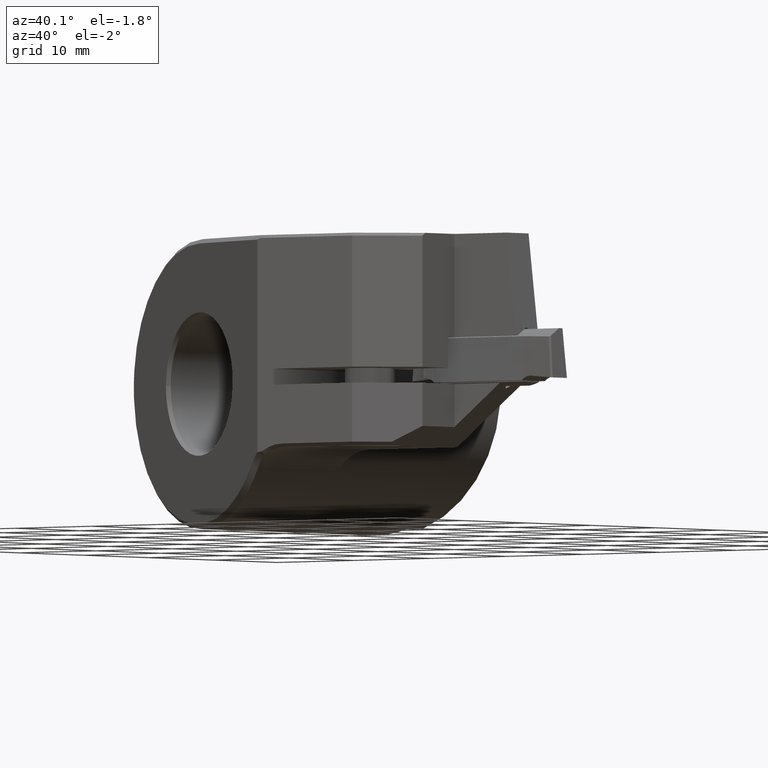
[diagram: clean part render]
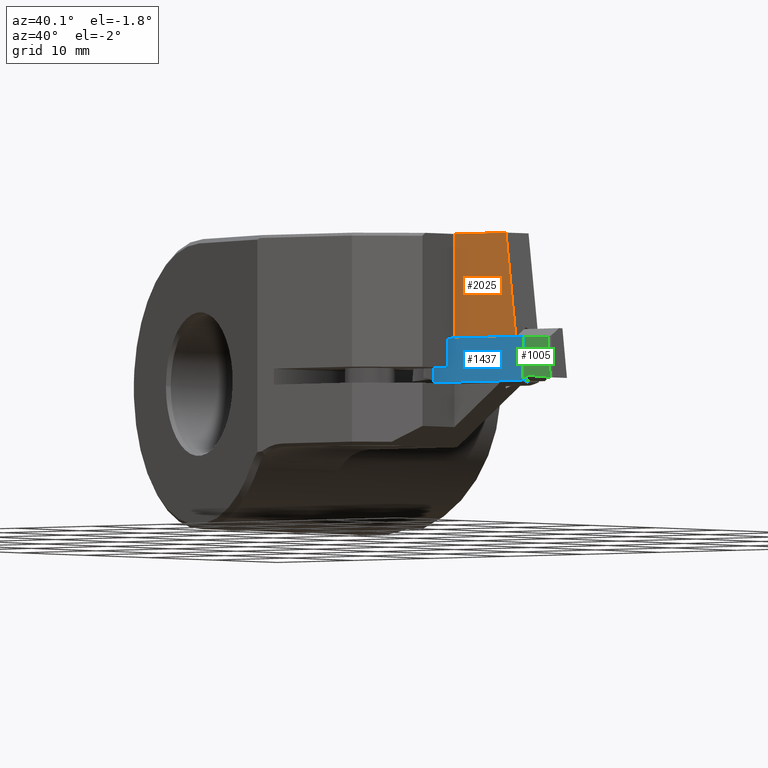
[diagram: same view with three faces highlighted in distinct colors, each labeled with its STEP entity id]
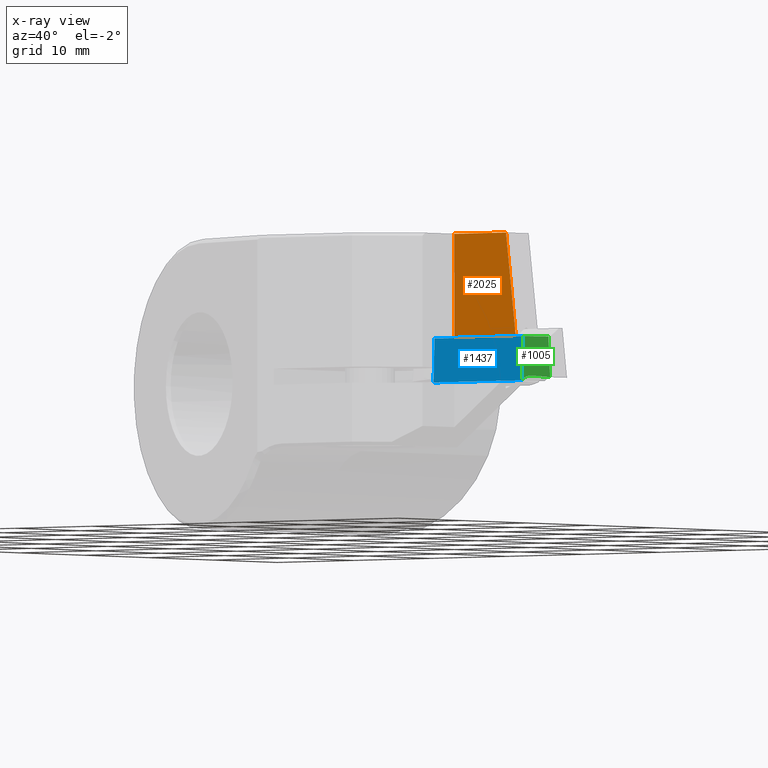
[diagram: x-ray of the same camera — body ghosted, the three highlighted faces saturated]
A machine part, auxiliary view with three faces highlighted in distinct colors.
The next image is the same camera in x-ray (body ghosted, the three faces saturated) — at least one of them is partly hidden behind the body in this view.
Their STEP definitions:

[orange] entity #2025 — the highlighted planar face has unit normal (-0, 1, 0).
#951=VERTEX_POINT('NONE',#2502);
#995=EDGE_CURVE('NONE',#1431,#1623,#2553,.F.);
#1001=EDGE_CURVE('NONE',#1235,#951,#2559,.F.);
#1235=VERTEX_POINT('NONE',#2814);
#1431=VERTEX_POINT('NONE',#3026);
#1623=VERTEX_POINT('NONE',#3240);
#1827=EDGE_CURVE('NONE',#1623,#1235,#3462,.F.);
#1869=EDGE_CURVE('NONE',#1431,#951,#3510,.T.);
#2025=ADVANCED_FACE('NONE',(#3686),#3687,.F.);
#2502=CARTESIAN_POINT('',(29.7,-25.25,14.5));
#2553=LINE('',#4540,#4541);
#2559=LINE('',#4560,#4561);
#2814=CARTESIAN_POINT('',(29.7,-25.25,4.20000000000001));
#3026=CARTESIAN_POINT('',(36.4353190227002,-25.25,14.5));
#3240=CARTESIAN_POINT('',(37.7,-25.25,4.20000000000001));
#3462=LINE('',#6223,#6224);
#3510=LINE('',#6346,#6347);
#3686=FACE_OUTER_BOUND('',#6649,.T.);
#3687=PLANE('',#6650);
#4540=CARTESIAN_POINT('',(38.1392358258305,-25.25,0.622711270859007));
#4541=VECTOR('',#7439,1.0);
#4560=CARTESIAN_POINT('',(29.7,-25.25,-14.5));
#4561=VECTOR('',#7443,1.0);
#6223=CARTESIAN_POINT('',(33.85,-25.25,4.20000000000001));
#6224=VECTOR('',#8376,1.0);
#6346=CARTESIAN_POINT('',(14.85,-25.25,14.5));
#6347=VECTOR('',#8440,1.0);
#6649=EDGE_LOOP('',(#8653,#8654,#8655,#8656));
#6650=AXIS2_PLACEMENT_3D('',#8657,#8658,#8659);
#7439=DIRECTION('',(-0.12186934340514,-5.09420749413919E-017,0.992546151641323));
#7443=DIRECTION('',(0.0,0.0,-1.0));
#8376=DIRECTION('',(1.0,4.18005656861881E-016,0.0));
#8440=DIRECTION('',(-1.0,-4.18005656861881E-016,0.0));
#8653=ORIENTED_EDGE('',*,*,#1827,.F.);
#8654=ORIENTED_EDGE('',*,*,#995,.F.);
#8655=ORIENTED_EDGE('',*,*,#1869,.T.);
#8656=ORIENTED_EDGE('',*,*,#1001,.F.);
#8657=CARTESIAN_POINT('',(29.7,-25.25,-14.5));
#8658=DIRECTION('',(-4.18005656861881E-016,1.0,0.0));
#8659=DIRECTION('',(-1.0,-4.18005656861881E-016,0.0));

[blue] entity #1437 — the highlighted planar face has unit normal (0, -0.9994, 0.0349).
#821=EDGE_CURVE('NONE',#961,#2285,#2360,.T.);
#869=VERTEX_POINT('NONE',#2412);
#961=VERTEX_POINT('NONE',#2514);
#1175=VERTEX_POINT('NONE',#2748);
#1339=EDGE_CURVE('NONE',#2193,#869,#2925,.T.);
#1437=ADVANCED_FACE('NONE',(#3032),#3033,.T.);
#1619=VERTEX_POINT('NONE',#3235);
#1825=EDGE_CURVE('NONE',#1619,#1175,#3460,.T.);
#1975=EDGE_CURVE('NONE',#1619,#961,#3629,.T.);
#1979=EDGE_CURVE('NONE',#2193,#1175,#3633,.T.);
#2193=VERTEX_POINT('NONE',#3872);
#2209=EDGE_CURVE('NONE',#869,#2285,#3888,.T.);
#2285=VERTEX_POINT('NONE',#3970);
#2360=(B_SPLINE_CURVE(3,(#4052,#4053,#4054,#4055),.UNSPECIFIED.,.F.,.F.)B_SPLINE_CURVE_WITH_KNOTS((4,4),(5.52004830039419,5.58494888979566),.UNSPECIFIED.)RATIONAL_B_SPLINE_CURVE((1.0,0.999649023591712,0.999649023591712,1.0))BOUNDED_CURVE()REPRESENTATION_ITEM('')GEOMETRIC_REPRESENTATION_ITEM()CURVE());
#2412=CARTESIAN_POINT('',(38.623441189102,-25.1483768536705,4.09960428409865));
#2514=CARTESIAN_POINT('',(38.5408903279005,-25.3022431864336,-0.306550992616997));
#2748=CARTESIAN_POINT('',(27.0095353452879,-25.2997781814902,-0.235962486714985));
#2925=LINE('',#5211,#5212);
#3032=FACE_OUTER_BOUND('',#5474,.T.);
#3033=PLANE('',#5475);
#3235=CARTESIAN_POINT('',(27.0883035359872,-25.3022431864336,-0.306550992616997));
#3460=(B_SPLINE_CURVE(3,(#6211,#6212,#6213,#6214),.UNSPECIFIED.,.F.,.F.)B_SPLINE_CURVE_WITH_KNOTS((4,4),(5.52004830039419,5.58494888979566),.UNSPECIFIED.)RATIONAL_B_SPLINE_CURVE((1.0,0.999649023591712,0.999649023591712,1.0))BOUNDED_CURVE()REPRESENTATION_ITEM('')GEOMETRIC_REPRESENTATION_ITEM()CURVE());
#3629=LINE('',#6538,#6539);
#3633=LINE('',#6544,#6545);
#3872=CARTESIAN_POINT('',(27.0057526747857,-25.1483768536705,4.09960428409865));
#3888=LINE('',#6965,#6966);
#3970=CARTESIAN_POINT('',(38.6196585185998,-25.2997781814902,-0.235962486714984));
#4052=CARTESIAN_POINT('',(38.5408903279005,-25.3022431864336,-0.306550992616997));
#4053=CARTESIAN_POINT('',(38.5663781089123,-25.3013919040506,-0.282173454682856));
#4054=CARTESIAN_POINT('',(38.5926433909731,-25.3005699472487,-0.258635691515943));
#4055=CARTESIAN_POINT('',(38.6196585185998,-25.2997781814902,-0.235962486714984));
#5211=CARTESIAN_POINT('',(46.2173744965889,-25.1483768536705,4.09960428409865));
#5212=VECTOR('',#7783,1000.0);
#5474=EDGE_LOOP('',(#7893,#7894,#7895,#7896,#7897,#7898));
#5475=AXIS2_PLACEMENT_3D('',#7899,#7900,#7901);
#6211=CARTESIAN_POINT('',(27.0883035359872,-25.3022431864336,-0.306550992616997));
#6212=CARTESIAN_POINT('',(27.0628157549754,-25.3013919040506,-0.282173454682856));
#6213=CARTESIAN_POINT('',(27.0365504729146,-25.3005699472487,-0.258635691515943));
#6214=CARTESIAN_POINT('',(27.0095353452879,-25.2997781814902,-0.235962486714985));
#6538=CARTESIAN_POINT('',(27.0095969319438,-25.3022431864336,-0.306550992616997));
#6539=VECTOR('',#8577,1000.0);
#6544=CARTESIAN_POINT('',(27.0095969319438,-25.3022431864336,-0.306550992616997));
#6545=VECTOR('',#8578,1000.0);
#6965=CARTESIAN_POINT('',(38.6195881050506,-25.3025964826985,-0.316668073943675));
#6966=VECTOR('',#8860,1000.0);
#7783=DIRECTION('',(1.0,6.93889390390722E-018,1.21430643318376E-017));
#7893=ORIENTED_EDGE('',*,*,#1825,.F.);
#7894=ORIENTED_EDGE('',*,*,#1975,.T.);
#7895=ORIENTED_EDGE('',*,*,#821,.T.);
#7896=ORIENTED_EDGE('',*,*,#2209,.F.);
#7897=ORIENTED_EDGE('',*,*,#1339,.F.);
#7898=ORIENTED_EDGE('',*,*,#1979,.T.);
#7899=CARTESIAN_POINT('',(27.0095969319438,-25.3022431864336,-0.306550992616997));
#7900=DIRECTION('',(6.51088008361638E-018,-0.999390827019096,0.0348994967025005));
#7901=DIRECTION('',(-1.0,-6.93889390390723E-018,-1.21430643318376E-017));
#8577=DIRECTION('',(1.0,6.93889390390722E-018,1.21430643318376E-017));
#8578=DIRECTION('',(0.00087194246203216,-0.0348994834357395,-0.999390447108767));
#8860=DIRECTION('',(-0.000871942462032146,-0.0348994834357395,-0.999390447108767));

[green] entity #1005 — the highlighted planar face has unit normal (-0.0499, -0.9981, 0.0349).
#869=VERTEX_POINT('NONE',#2412);
#1005=ADVANCED_FACE('NONE',(#2563),#2564,.T.);
#1027=VERTEX_POINT('NONE',#2587);
#1143=EDGE_CURVE('NONE',#2067,#1027,#2716,.T.);
#1427=EDGE_CURVE('NONE',#1027,#1523,#3022,.T.);
#1505=EDGE_CURVE('NONE',#2285,#2061,#3107,.T.);
#1523=VERTEX_POINT('NONE',#3127);
#2045=EDGE_CURVE('NONE',#2061,#2067,#3709,.T.);
#2061=VERTEX_POINT('NONE',#3728);
#2067=VERTEX_POINT('NONE',#3734);
#2209=EDGE_CURVE('NONE',#869,#2285,#3888,.T.);
#2239=EDGE_CURVE('NONE',#869,#1523,#3920,.T.);
#2285=VERTEX_POINT('NONE',#3970);
#2412=CARTESIAN_POINT('',(38.623441189102,-25.1483768536705,4.09960428409865));
#2563=FACE_OUTER_BOUND('',#4619,.T.);
#2564=PLANE('',#4620);
#2587=CARTESIAN_POINT('',(42.4008357965892,-25.4836430633296,-0.0874118732534034));
#2716=LINE('',#4867,#4868);
#3022=LINE('',#5459,#5460);
#3107=(B_SPLINE_CURVE(3,(#5633,#5634,#5635,#5636),.UNSPECIFIED.,.F.,.F.)B_SPLINE_CURVE_WITH_KNOTS((4,4),(0.26231204848604,0.960548465869961),.UNSPECIFIED.)RATIONAL_B_SPLINE_CURVE((1.0,0.959783141271317,0.959783141271317,1.0))BOUNDED_CURVE()REPRESENTATION_ITEM('')GEOMETRIC_REPRESENTATION_ITEM()CURVE());
#3127=CARTESIAN_POINT('',(42.0433345126733,-25.3228944546235,3.99884650021011));
#3709=(B_SPLINE_CURVE(3,(#6685,#6686,#6687,#6688),.UNSPECIFIED.,.F.,.F.)B_SPLINE_CURVE_WITH_KNOTS((4,4),(0.960548465869961,1.04781492846968),.UNSPECIFIED.)RATIONAL_B_SPLINE_CURVE((1.0,0.999365481054572,0.999365481054572,1.0))BOUNDED_CURVE()REPRESENTATION_ITEM('')GEOMETRIC_REPRESENTATION_ITEM()CURVE());
#3728=CARTESIAN_POINT('',(39.6675330712652,-25.3388344867693,0.145494794001305));
#3734=CARTESIAN_POINT('',(39.8095969319438,-25.3461545514209,0.13929215189085));
#3888=LINE('',#6965,#6966);
#3920=LINE('',#7015,#7016);
#3970=CARTESIAN_POINT('',(38.6196585185998,-25.2997781814902,-0.235962486714984));
#4619=EDGE_LOOP('',(#7445,#7446,#7447,#7448,#7449,#7450));
#4620=AXIS2_PLACEMENT_3D('',#7451,#7452,#7453);
#4867=CARTESIAN_POINT('',(38.6682229012553,-25.2855944003859,0.239149440418984));
#4868=VECTOR('',#7607,1000.0);
#5459=CARTESIAN_POINT('',(42.3905358303872,-25.479011736643,0.0303172791522094));
#5460=VECTOR('',#7889,1000.0);
#5633=CARTESIAN_POINT('',(38.6196585185998,-25.2997781814902,-0.235962486714984));
#5634=CARTESIAN_POINT('',(38.916314551284,-25.3059056565638,0.0130144227197199));
#5635=CARTESIAN_POINT('',(39.2802420913036,-25.3194699377712,0.145494794001305));
#5636=CARTESIAN_POINT('',(39.6675330712652,-25.3388344867693,0.145494794001305));
#6685=CARTESIAN_POINT('',(39.6675330712652,-25.3388344867693,0.145494794001305));
#6686=CARTESIAN_POINT('',(39.7149629006608,-25.3412059782391,0.145494794001305));
#6687=CARTESIAN_POINT('',(39.7623475873685,-25.3436475490125,0.143425933900223));
#6688=CARTESIAN_POINT('',(39.8095969319438,-25.3461545514209,0.13929215189085));
#6965=CARTESIAN_POINT('',(38.6195881050506,-25.3025964826985,-0.316668073943675));
#6966=VECTOR('',#8860,1000.0);
#7015=CARTESIAN_POINT('',(46.2035658512964,-25.5351916007426,3.87627668575007));
#7016=VECTOR('',#8892,1000.0);
#7445=ORIENTED_EDGE('',*,*,#1143,.T.);
#7446=ORIENTED_EDGE('',*,*,#1427,.T.);
#7447=ORIENTED_EDGE('',*,*,#2239,.F.);
#7448=ORIENTED_EDGE('',*,*,#2209,.T.);
#7449=ORIENTED_EDGE('',*,*,#1505,.T.);
#7450=ORIENTED_EDGE('',*,*,#2045,.T.);
#7451=CARTESIAN_POINT('',(38.6195969319438,-25.3022431864336,-0.306550992616997));
#7452=DIRECTION('',(-0.0499071962969189,-0.998143925938385,0.0348994967025005));
#7453=DIRECTION('',(-0.998752338877845,0.0499376169438918,1.52825315018499E-017));
#7607=DIRECTION('',(0.994805987497139,-0.0527833989853405,-0.087034246313712));
#7889=DIRECTION('',(-0.0870888933687241,0.039159071792508,0.995430606194204));
#8860=DIRECTION('',(-0.000871942462032146,-0.0348994834357395,-0.999390447108767));
#8892=DIRECTION('',(0.998268458314074,-0.0509417692216439,-0.0294112441731115));